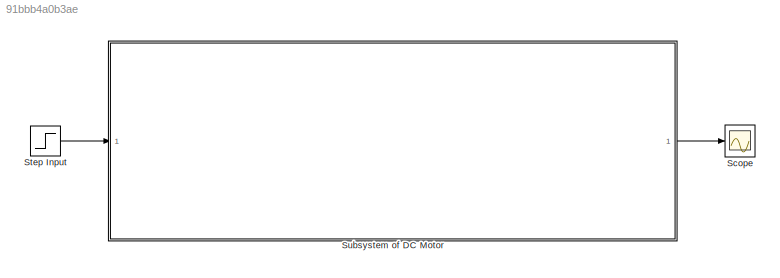
MODEL slx_91bbb4a0b3ae
KIND model
CONFIG AbsTol = auto
CONFIG EnableMultiTasking = off
CONFIG FixedStep = auto
CONFIG MaxStep = auto
CONFIG MinStep = auto
CONFIG RelTol = 1e-3
CONFIG SampleTimeConstraint = Unconstrained
CONFIG SolverName = VariableStepAuto
CONFIG StartTime = 0.0
CONFIG StopTime = 10.0
BLOCK [Scope] Scope
  Floating = off
  NumInputPorts = 1
  ScopeSpecificationString = Simulink.scopes.TimeScopeBlockCfg('CurrentConfiguration', extmgr.ConfigurationSet(extmgr.Configuration('Core','General UI',true),extmgr.Configuration('Core','Source UI',true),extmgr.Configuration('Sources','WiredSimulink',true),extmgr.Configuration('Visuals','Time Domain',true,'SerializedDisplays',{struct('MinYLimReal','-0.25989','MaxYLimReal','2.33903','YLabelReal','','MinYLimMag','0.00000','MaxY...<+1430ch>
BLOCK [Step] Step Input
  SampleTime = 0
  Time = 0.0001
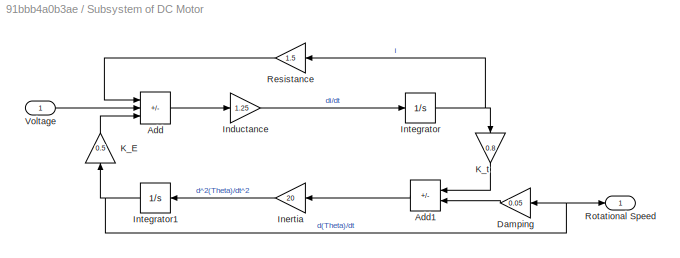
BLOCK [SubSystem] Subsystem of DC Motor
BLOCK [Sum] Subsystem of DC Motor/Add
  IconShape = rectangular
  Inputs = -+-
BLOCK [Sum] Subsystem of DC Motor/Add1
  IconShape = rectangular
  Inputs = +-
  NameLocation = top
BLOCK [Gain] Subsystem of DC Motor/Damping
  Gain = 0.05
  NameLocation = top
BLOCK [Gain] Subsystem of DC Motor/Inductance
  Gain = 1.25
BLOCK [Gain] Subsystem of DC Motor/Inertia
  Gain = 20
  NameLocation = top
BLOCK [Integrator] Subsystem of DC Motor/Integrator
BLOCK [Integrator] Subsystem of DC Motor/Integrator1
  NameLocation = top
BLOCK [Gain] Subsystem of DC Motor/K_E
  Gain = 0.5
  NameLocation = right
BLOCK [Gain] Subsystem of DC Motor/K_t
  Gain = 0.8
  NameLocation = left
BLOCK [Gain] Subsystem of DC Motor/Resistance
  Gain = 1.5
  NameLocation = top
BLOCK [Outport] Subsystem of DC Motor/Rotational Speed
BLOCK [Inport] Subsystem of DC Motor/Voltage
LINE Step Input:1 -> Subsystem of DC Motor:1
LINE Subsystem of DC Motor/Add1:1 -> Subsystem of DC Motor/Inertia:1
LINE Subsystem of DC Motor/Add:1 -> Subsystem of DC Motor/Inductance:1
LINE Subsystem of DC Motor/Damping:1 -> Subsystem of DC Motor/Add1:2
LINE Subsystem of DC Motor/Inductance:1 -> Subsystem of DC Motor/Integrator:1
LINE Subsystem of DC Motor/Inertia:1 -> Subsystem of DC Motor/Integrator1:1
NET Subsystem of DC Motor/Integrator1:1 -> Subsystem of DC Motor/Damping:1, Subsystem of DC Motor/K_E:1, Subsystem of DC Motor/Rotational Speed:1
NET Subsystem of DC Motor/Integrator:1 -> Subsystem of DC Motor/K_t:1, Subsystem of DC Motor/Resistance:1
LINE Subsystem of DC Motor/K_E:1 -> Subsystem of DC Motor/Add:3
LINE Subsystem of DC Motor/K_t:1 -> Subsystem of DC Motor/Add1:1
LINE Subsystem of DC Motor/Resistance:1 -> Subsystem of DC Motor/Add:1
LINE Subsystem of DC Motor/Voltage:1 -> Subsystem of DC Motor/Add:2
LINE Subsystem of DC Motor:1 -> Scope:1
note: NET lines group one-source signal fan-out (src -> all destinations, sorted); 1:1 wires keep LINE
